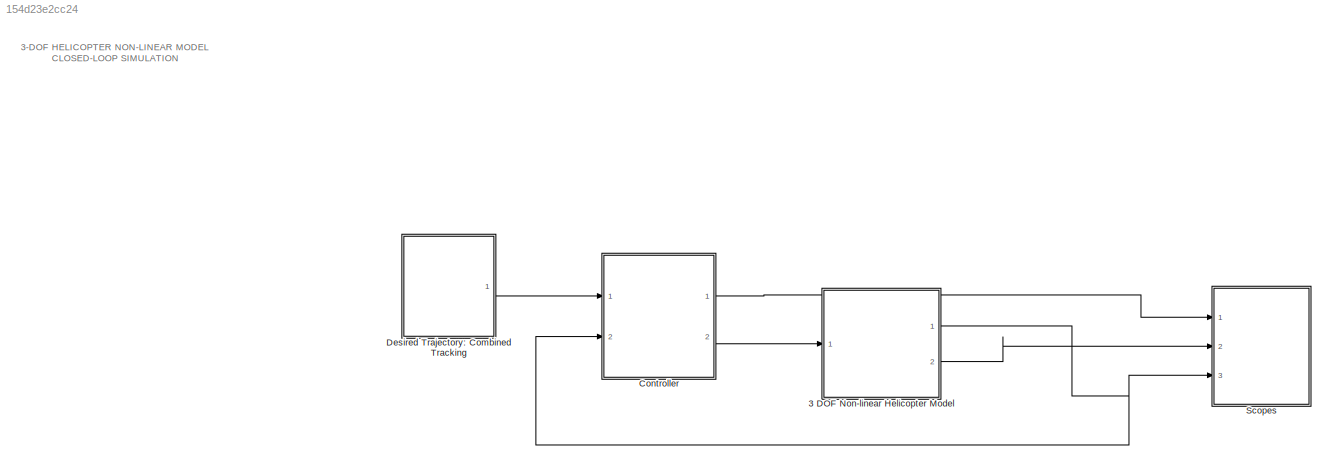
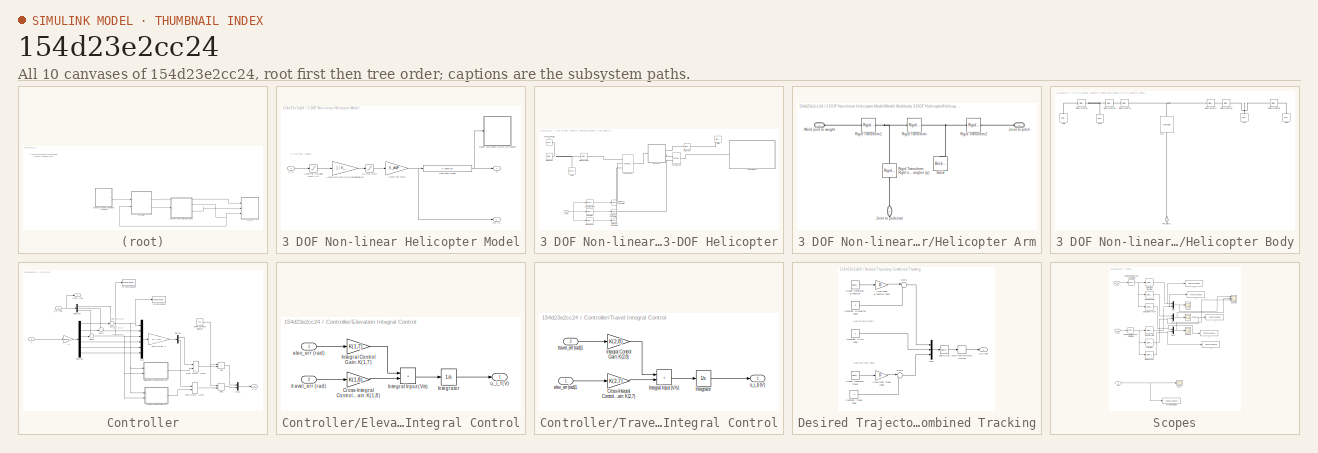
[diagram: thumbnail index - all 10 canvases of the model, root first then tree order]
MODEL slx_154d23e2cc24
KIND model
CONFIG AbsTol = auto
CONFIG EnableMultiTasking = on
CONFIG FixedStep = 0.005
CONFIG MaxStep = 1e-3
CONFIG MinStep = 1e-5
CONFIG RelTol = 1e-5
CONFIG SampleTimeConstraint = Unconstrained
CONFIG SolverName = ode1
CONFIG StartTime = 0.0
CONFIG StopTime = 50
BLOCK [SubSystem] 3 DOF Non-linear Helicopter Model
  Ports = [1, 2]
  RequestExecContextInheritance = off
BLOCK [S-Function] 3 DOF Non-linear Helicopter Model/ Nonlinear Model
  EnableBusSupport = off
  FunctionName = Nonlinear_Helicopter_SFunc
  Parameters = par,X0
  Ports = [1, 1]
  SFcnIsStateOwnerBlock = off
  SFunctionDeploymentMode = off
BLOCK [Saturate] 3 DOF Non-linear Helicopter Model/Amplifer Voltage Limit (V)
  LowerLimit = -VMAX_AMP
  UpperLimit = VMAX_AMP
BLOCK [Gain] 3 DOF Non-linear Helicopter Model/Amplifier Gain
  Gain = K_AMP
  Multiplication = Matrix(K*u)
  OutDataTypeStr = Inherit: Same as input
  ParamDataTypeStr = Inherit: Same as input
  SaturateOnIntegerOverflow = on
BLOCK [Gain] 3 DOF Non-linear Helicopter Model/Amplifier Gain Pre-Compensation
  Gain = 1 / K_AMP
  Multiplication = Matrix(K*u)
  OutDataTypeStr = Inherit: Same as input
  ParamDataTypeStr = Inherit: Same as input
  SaturateOnIntegerOverflow = on
BLOCK [Saturate] 3 DOF Non-linear Helicopter Model/DACB Limit
  LowerLimit = -VMAX_DAC
  UpperLimit = VMAX_DAC
BLOCK [SubSystem] 3 DOF Non-linear Helicopter Model/Model Multibody 3-DOF Helicopter
  Ports = [1]
  RequestExecContextInheritance = off
BLOCK [SubSystem] 3 DOF Non-linear Helicopter Model/Model Multibody 3-DOF Helicopter/Helicopter Arm
  Ports = [0, 0, 0, 0, 0, 2, 1]
  RequestExecContextInheritance = off
BLOCK [PMIOPort] 3 DOF Non-linear Helicopter Model/Model Multibody 3-DOF Helicopter/Helicopter Arm/Joint to pedestal
  NameLocation = left
  Port = 2
  Side = Right
BLOCK [PMIOPort] 3 DOF Non-linear Helicopter Model/Model Multibody 3-DOF Helicopter/Helicopter Arm/Joint to pitch
  NameLocation = top
  Port = 3
  Side = Left
BLOCK [Reference] 3 DOF Non-linear Helicopter Model/Model Multibody 3-DOF Helicopter/Helicopter Arm/Rigid Transform  REF=sm_lib/Frames and
Transforms/Rigid
Transform
  Ports = [0, 0, 0, 0, 0, 1, 1]
  SourceBlock = sm_lib/Frames and\nTransforms/Rigid\nTransform
  SourceProductBaseCode = MS
  SourceType = Rigid\nTransform
BLOCK [Reference] 3 DOF Non-linear Helicopter Model/Model Multibody 3-DOF Helicopter/Helicopter Arm/Rigid Transform1  REF=sm_lib/Frames and
Transforms/Rigid
Transform
  Ports = [0, 0, 0, 0, 0, 1, 1]
  SourceBlock = sm_lib/Frames and\nTransforms/Rigid\nTransform
  SourceProductBaseCode = MS
  SourceType = Rigid\nTransform
BLOCK [Reference] 3 DOF Non-linear Helicopter Model/Model Multibody 3-DOF Helicopter/Helicopter Arm/Rigid Transform2  REF=sm_lib/Frames and
Transforms/Rigid
Transform
  Ports = [0, 0, 0, 0, 0, 1, 1]
  SourceBlock = sm_lib/Frames and\nTransforms/Rigid\nTransform
  SourceProductBaseCode = MS
  SourceType = Rigid\nTransform
BLOCK [Reference] 3 DOF Non-linear Helicopter Model/Model Multibody 3-DOF Helicopter/Helicopter Arm/Rigid Transform: Right elevation (x) & Travel angles (y)  REF=sm_lib/Frames and
Transforms/Rigid
Transform
  NameLocation = right
  Ports = [0, 0, 0, 0, 0, 1, 1]
  SourceBlock = sm_lib/Frames and\nTransforms/Rigid\nTransform
  SourceProductBaseCode = MS
  SourceType = Rigid\nTransform
BLOCK [Reference] 3 DOF Non-linear Helicopter Model/Model Multibody 3-DOF Helicopter/Helicopter Arm/Solid  REF=sm_lib/Body Elements/Brick Solid
  NameLocation = right
  Ports = [0, 0, 0, 0, 0, 0, 1]
  SourceBlock = sm_lib/Body Elements/Brick Solid
  SourceProductBaseCode = MS
  SourceType = Brick Solid
BLOCK [PMIOPort] 3 DOF Non-linear Helicopter Model/Model Multibody 3-DOF Helicopter/Helicopter Arm/Weld joint to weight
  NameLocation = top
  Side = Left
BLOCK [SubSystem] 3 DOF Non-linear Helicopter Model/Model Multibody 3-DOF Helicopter/Helicopter Body
  Ports = [0, 0, 0, 0, 0, 1]
  RequestExecContextInheritance = off
BLOCK [Reference] 3 DOF Non-linear Helicopter Model/Model Multibody 3-DOF Helicopter/Helicopter Body/Back  REF=sm_lib/Body Elements/Cylindrical Solid
  NameLocation = right
  Ports = [0, 0, 0, 0, 0, 0, 1]
  SourceBlock = sm_lib/Body Elements/Cylindrical Solid
  SourceProductBaseCode = MS
  SourceType = Cylindrical Solid
BLOCK [Reference] 3 DOF Non-linear Helicopter Model/Model Multibody 3-DOF Helicopter/Helicopter Body/Front  REF=sm_lib/Body Elements/Cylindrical Solid
  NameLocation = right
  Ports = [0, 0, 0, 0, 0, 0, 1]
  SourceBlock = sm_lib/Body Elements/Cylindrical Solid
  SourceProductBaseCode = MS
  SourceType = Cylindrical Solid
BLOCK [PMIOPort] 3 DOF Non-linear Helicopter Model/Model Multibody 3-DOF Helicopter/Helicopter Body/Rho (pitch)1
  NameLocation = right
  Side = Left
BLOCK [Reference] 3 DOF Non-linear Helicopter Model/Model Multibody 3-DOF Helicopter/Helicopter Body/Rigid Transform  REF=sm_lib/Frames and
Transforms/Rigid
Transform
  Ports = [0, 0, 0, 0, 0, 1, 1]
  SourceBlock = sm_lib/Frames and\nTransforms/Rigid\nTransform
  SourceProductBaseCode = MS
  SourceType = Rigid\nTransform
BLOCK [Reference] 3 DOF Non-linear Helicopter Model/Model Multibody 3-DOF Helicopter/Helicopter Body/Rigid Transform1  REF=sm_lib/Frames and
Transforms/Rigid
Transform
  Ports = [0, 0, 0, 0, 0, 1, 1]
  SourceBlock = sm_lib/Frames and\nTransforms/Rigid\nTransform
  SourceProductBaseCode = MS
  SourceType = Rigid\nTransform
BLOCK [Reference] 3 DOF Non-linear Helicopter Model/Model Multibody 3-DOF Helicopter/Helicopter Body/Rigid Transform2  REF=sm_lib/Frames and
Transforms/Rigid
Transform
  Ports = [0, 0, 0, 0, 0, 1, 1]
  SourceBlock = sm_lib/Frames and\nTransforms/Rigid\nTransform
  SourceProductBaseCode = MS
  SourceType = Rigid\nTransform
BLOCK [Reference] 3 DOF Non-linear Helicopter Model/Model Multibody 3-DOF Helicopter/Helicopter Body/Rigid Transform3  REF=sm_lib/Frames and
Transforms/Rigid
Transform
  Ports = [0, 0, 0, 0, 0, 1, 1]
  SourceBlock = sm_lib/Frames and\nTransforms/Rigid\nTransform
  SourceProductBaseCode = MS
  SourceType = Rigid\nTransform
BLOCK [Reference] 3 DOF Non-linear Helicopter Model/Model Multibody 3-DOF Helicopter/Helicopter Body/Rigid Transform4  REF=sm_lib/Frames and
Transforms/Rigid
Transform
  Ports = [0, 0, 0, 0, 0, 1, 1]
  SourceBlock = sm_lib/Frames and\nTransforms/Rigid\nTransform
  SourceProductBaseCode = MS
  SourceType = Rigid\nTransform
BLOCK [Reference] 3 DOF Non-linear Helicopter Model/Model Multibody 3-DOF Helicopter/Helicopter Body/Rigid Transform5  REF=sm_lib/Frames and
Transforms/Rigid
Transform
  Ports = [0, 0, 0, 0, 0, 1, 1]
  SourceBlock = sm_lib/Frames and\nTransforms/Rigid\nTransform
  SourceProductBaseCode = MS
  SourceType = Rigid\nTransform
BLOCK [Reference] 3 DOF Non-linear Helicopter Model/Model Multibody 3-DOF Helicopter/Helicopter Body/Solid  REF=sm_lib/Body Elements/Cylindrical Solid
  NameLocation = right
  Ports = [0, 0, 0, 0, 0, 0, 1]
  SourceBlock = sm_lib/Body Elements/Cylindrical Solid
  SourceProductBaseCode = MS
  SourceType = Cylindrical Solid
BLOCK [Reference] 3 DOF Non-linear Helicopter Model/Model Multibody 3-DOF Helicopter/Helicopter Body/Solid1  REF=sm_lib/Body Elements/Cylindrical Solid
  NameLocation = right
  Ports = [0, 0, 0, 0, 0, 0, 1]
  SourceBlock = sm_lib/Body Elements/Cylindrical Solid
  SourceProductBaseCode = MS
  SourceType = Cylindrical Solid
BLOCK [Reference] 3 DOF Non-linear Helicopter Model/Model Multibody 3-DOF Helicopter/Helicopter Body/arm  REF=sm_lib/Body Elements/Brick Solid
  NameLocation = right
  Ports = [0, 0, 0, 0, 0, 1, 1]
  SourceBlock = sm_lib/Body Elements/Brick Solid
  SourceProductBaseCode = MS
  SourceType = Brick Solid
BLOCK [Reference] 3 DOF Non-linear Helicopter Model/Model Multibody 3-DOF Helicopter/Revolute Joint  REF=sm_lib/Joints/Revolute Joint
  Ports = [0, 0, 0, 0, 0, 2, 1]
  SourceBlock = sm_lib/Joints/Revolute Joint
  SourceProductBaseCode = MS
  SourceType = Revolute Joint
BLOCK [Reference] 3 DOF Non-linear Helicopter Model/Model Multibody 3-DOF Helicopter/Rigid-Transform  REF=sm_lib/Frames and
Transforms/Rigid
Transform
  Ports = [0, 0, 0, 0, 0, 1, 1]
  SourceBlock = sm_lib/Frames and\nTransforms/Rigid\nTransform
  SourceProductBaseCode = MS
  SourceType = Rigid\nTransform
BLOCK [Selector] 3 DOF Non-linear Helicopter Model/Model Multibody 3-DOF Helicopter/Select Elevation
  IndexOptions = Index vector (dialog)
  Indices = 1
  InputPortWidth = 6
  OutputSizes = 1
  Ports = [1, 1]
BLOCK [Selector] 3 DOF Non-linear Helicopter Model/Model Multibody 3-DOF Helicopter/Select Pitch
  IndexOptions = Index vector (dialog)
  Indices = 2
  InputPortWidth = 6
  OutputSizes = 1
  Ports = [1, 1]
BLOCK [Selector] 3 DOF Non-linear Helicopter Model/Model Multibody 3-DOF Helicopter/Select Travel
  IndexOptions = Index vector (dialog)
  Indices = 3
  InputPortWidth = 6
  OutputSizes = 1
  Ports = [1, 1]
BLOCK [Reference] 3 DOF Non-linear Helicopter Model/Model Multibody 3-DOF Helicopter/Simulink-PS Converter2  REF=nesl_utility/Simulink-PS
Converter
  Ports = [1, 0, 0, 0, 0, 0, 1]
  SourceBlock = nesl_utility/Simulink-PS\nConverter
  SourceProductBaseCode = SS
  SourceType = Simulink-PS\nConverter
BLOCK [Reference] 3 DOF Non-linear Helicopter Model/Model Multibody 3-DOF Helicopter/Simulink-PS Converter3  REF=nesl_utility/Simulink-PS
Converter
  Ports = [1, 0, 0, 0, 0, 0, 1]
  SourceBlock = nesl_utility/Simulink-PS\nConverter
  SourceProductBaseCode = SS
  SourceType = Simulink-PS\nConverter
BLOCK [Reference] 3 DOF Non-linear Helicopter Model/Model Multibody 3-DOF Helicopter/Simulink-PS Converter4  REF=nesl_utility/Simulink-PS
Converter
  Ports = [1, 0, 0, 0, 0, 0, 1]
  SourceBlock = nesl_utility/Simulink-PS\nConverter
  SourceProductBaseCode = SS
  SourceType = Simulink-PS\nConverter
BLOCK [Reference] 3 DOF Non-linear Helicopter Model/Model Multibody 3-DOF Helicopter/Solid  REF=sm_lib/Body Elements/Brick Solid
  NameLocation = right
  Ports = [0, 0, 0, 0, 0, 0, 1]
  SourceBlock = sm_lib/Body Elements/Brick Solid
  SourceProductBaseCode = MS
  SourceType = Brick Solid
BLOCK [Reference] 3 DOF Non-linear Helicopter Model/Model Multibody 3-DOF Helicopter/Solid1  REF=sm_lib/Body Elements/Revolved Solid
  NameLocation = right
  Ports = [0, 0, 0, 0, 0, 0, 1]
  SourceBlock = sm_lib/Body Elements/Revolved Solid
  SourceProductBaseCode = MS
  SourceType = Revolved Solid
BLOCK [Reference] 3 DOF Non-linear Helicopter Model/Model Multibody 3-DOF Helicopter/Solver Configuration  REF=nesl_utility/Solver
Configuration
  Ports = [0, 0, 0, 0, 0, 0, 1]
  SourceBlock = nesl_utility/Solver\nConfiguration
  SourceProductBaseCode = SS
  SourceType = Solver\nConfiguration
BLOCK [Reference] 3 DOF Non-linear Helicopter Model/Model Multibody 3-DOF Helicopter/Universal Joint  REF=sm_lib/Joints/Universal
Joint
  Ports = [0, 0, 0, 0, 0, 3, 1]
  SourceBlock = sm_lib/Joints/Universal\nJoint
  SourceProductBaseCode = MS
  SourceType = Universal\nJoint
BLOCK [Reference] 3 DOF Non-linear Helicopter Model/Model Multibody 3-DOF Helicopter/Weld Joint  REF=sm_lib/Joints/Weld Joint
  Ports = [0, 0, 0, 0, 0, 1, 1]
  SourceBlock = sm_lib/Joints/Weld Joint
  SourceProductBaseCode = MS
  SourceType = Weld Joint
BLOCK [Reference] 3 DOF Non-linear Helicopter Model/Model Multibody 3-DOF Helicopter/World Frame  REF=sm_lib/Frames and
Transforms/World Frame
  Ports = [0, 0, 0, 0, 0, 0, 1]
  SourceBlock = sm_lib/Frames and\nTransforms/World Frame
  SourceProductBaseCode = MS
  SourceType = World Frame
BLOCK [Inport] 3 DOF Non-linear Helicopter Model/Model Multibody 3-DOF Helicopter/X_sim
BLOCK [Outport] 3 DOF Non-linear Helicopter Model/Vm (V)
  Port = 2
  VectorParamsAs1DForOutWhenUnconnected = off
BLOCK [Outport] 3 DOF Non-linear Helicopter Model/X 
  VectorParamsAs1DForOutWhenUnconnected = off
BLOCK [Inport] 3 DOF Non-linear Helicopter Model/u (V)
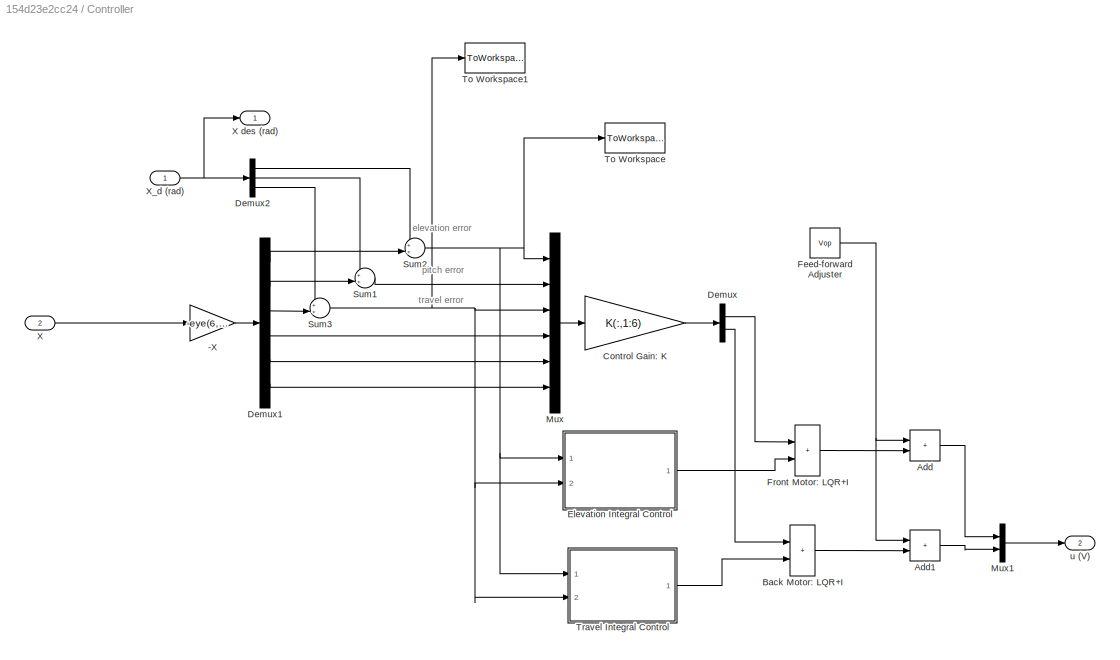
BLOCK [SubSystem] Controller
  Ports = [2, 2]
  RequestExecContextInheritance = off
BLOCK [Gain] Controller/-X
  Gain = -eye(6,6)
  Multiplication = Matrix(K*u)
BLOCK [Sum] Controller/Add
  IconShape = rectangular
  Ports = [2, 1]
BLOCK [Sum] Controller/Add1
  IconShape = rectangular
  Ports = [2, 1]
BLOCK [Sum] Controller/Back Motor: LQR+I
  IconShape = rectangular
  Ports = [2, 1]
BLOCK [Gain] Controller/Control Gain: K
  Gain = K(:,1:6)
  Multiplication = Matrix(K*u)
BLOCK [Demux] Controller/Demux
  Outputs = 2
  Ports = [1, 2]
BLOCK [Demux] Controller/Demux1
  Outputs = 6
  Ports = [1, 6]
BLOCK [Demux] Controller/Demux2
  Outputs = 3
  Ports = [1, 3]
BLOCK [SubSystem] Controller/Elevation Integral Control
  Ports = [2, 1]
  RequestExecContextInheritance = off
BLOCK [Gain] Controller/Elevation Integral Control/Cross-Integral Control Gain: K(1,8)
  Gain = K(1,8)
  Multiplication = Matrix(K*u)
BLOCK [Gain] Controller/Elevation Integral Control/Integral Control Gain: K(1,7)
  Gain = K(1,7)
  Multiplication = Matrix(K*u)
BLOCK [Sum] Controller/Elevation Integral Control/Integral Input (V//s)
  IconShape = rectangular
  Ports = [2, 1]
BLOCK [Integrator] Controller/Elevation Integral Control/Integrator
  LimitOutput = on
  LowerSaturationLimit = -SAT_INT_ERR_ELEV
  Ports = [1, 1]
  UpperSaturationLimit = SAT_INT_ERR_ELEV
BLOCK [Inport] Controller/Elevation Integral Control/elev_err (rad)
BLOCK [Inport] Controller/Elevation Integral Control/travel_err (rad)
  Port = 2
BLOCK [Outport] Controller/Elevation Integral Control/u_i_f (V)
  VectorParamsAs1DForOutWhenUnconnected = off
BLOCK [Constant] Controller/Feed-forward Adjuster
  Value = Vop
BLOCK [Sum] Controller/Front Motor: LQR+I
  IconShape = rectangular
  Ports = [2, 1]
BLOCK [Mux] Controller/Mux
  DisplayOption = bar
  Inputs = 6
  Ports = [6, 1]
BLOCK [Mux] Controller/Mux1
  DisplayOption = bar
  Inputs = 2
  Ports = [2, 1]
BLOCK [Sum] Controller/Sum1
  Inputs = ++|
  Ports = [2, 1]
BLOCK [Sum] Controller/Sum2
  Inputs = ++|
  Ports = [2, 1]
BLOCK [Sum] Controller/Sum3
  Inputs = ++|
  Ports = [2, 1]
BLOCK [ToWorkspace] Controller/To Workspace
  FixptAsFi = on
  MaxDataPoints = inf
  Ports = [1]
  SampleTime = -1
  VariableName = err_elevation
BLOCK [ToWorkspace] Controller/To Workspace1
  FixptAsFi = on
  MaxDataPoints = inf
  Ports = [1]
  SampleTime = -1
  VariableName = err_travel
BLOCK [SubSystem] Controller/Travel Integral Control
  Ports = [2, 1]
  RequestExecContextInheritance = off
BLOCK [Gain] Controller/Travel Integral Control/Cross-Integral Control Gain: K(2,7)
  Gain = K(2,7)
  Multiplication = Matrix(K*u)
BLOCK [Gain] Controller/Travel Integral Control/Integral Control Gain: K(2,8)
  Gain = K(2,8)
  Multiplication = Matrix(K*u)
BLOCK [Sum] Controller/Travel Integral Control/Integral Input (V//s)
  IconShape = rectangular
  Ports = [2, 1]
BLOCK [Integrator] Controller/Travel Integral Control/Integrator
  LimitOutput = on
  LowerSaturationLimit = -SAT_INT_ERR_TRAVEL
  Ports = [1, 1]
  UpperSaturationLimit = SAT_INT_ERR_TRAVEL
BLOCK [Inport] Controller/Travel Integral Control/elev_err (rad)1
BLOCK [Inport] Controller/Travel Integral Control/travel_err (rad)1
  Port = 2
BLOCK [Outport] Controller/Travel Integral Control/u_i_b (V)
  VectorParamsAs1DForOutWhenUnconnected = off
BLOCK [Inport] Controller/X
  Port = 2
BLOCK [Outport] Controller/X des (rad)
  VectorParamsAs1DForOutWhenUnconnected = off
BLOCK [Inport] Controller/X_d (rad)
BLOCK [Outport] Controller/u (V)
  Port = 2
  VectorParamsAs1DForOutWhenUnconnected = off
BLOCK [SubSystem] Desired Trajectory: Combined Tracking
  Ports = [0, 1]
  RequestExecContextInheritance = off
BLOCK [Gain] Desired Trajectory: Combined Tracking/Amplitude: Elevation (deg)
  Gain = 10
BLOCK [Gain] Desired Trajectory: Combined Tracking/Amplitude: Travel (deg)
  Gain = 10
BLOCK [Constant] Desired Trajectory: Combined Tracking/Constant: Elevation (deg)
  Value = 0
BLOCK [Constant] Desired Trajectory: Combined Tracking/Constant: Pitch (deg)
  Value = 0
BLOCK [Constant] Desired Trajectory: Combined Tracking/Constant: Travel (deg)
  Value = 0
BLOCK [RateLimiter] Desired Trajectory: Combined Tracking/Des Position Rate Limiter
  FallingSlewLimit = -CMD_RATE_LIMIT
  RisingSlewLimit = CMD_RATE_LIMIT
  SampleTimeMode = inherited
BLOCK [Mux] Desired Trajectory: Combined Tracking/Mux
  DisplayOption = bar
  Inputs = 3
  Ports = [3, 1]
BLOCK [SignalGenerator] Desired Trajectory: Combined Tracking/Signal Generator: Elevation
  Frequency = 0.1
  Ports = [0, 1]
  WaveForm = square
BLOCK [SignalGenerator] Desired Trajectory: Combined Tracking/Signal Generator: Travel
  Frequency = 0.05
  Ports = [0, 1]
  WaveForm = square
BLOCK [Sum] Desired Trajectory: Combined Tracking/Sum1
  Inputs = |++
  Ports = [2, 1]
BLOCK [Sum] Desired Trajectory: Combined Tracking/Sum2
  Inputs = |++
  Ports = [2, 1]
BLOCK [Reference] Desired Trajectory: Combined Tracking/deg to rad  REF=simulink_extras/Transformations/Degrees to
Radians
  Ports = [1, 1]
  SourceBlock = simulink_extras/Transformations/Degrees to\nRadians
  SourceProductBaseCode = SL
  SourceType = DegreesToRadians
BLOCK [Outport] Desired Trajectory: Combined Tracking/x_d (rad)
  VectorParamsAs1DForOutWhenUnconnected = off
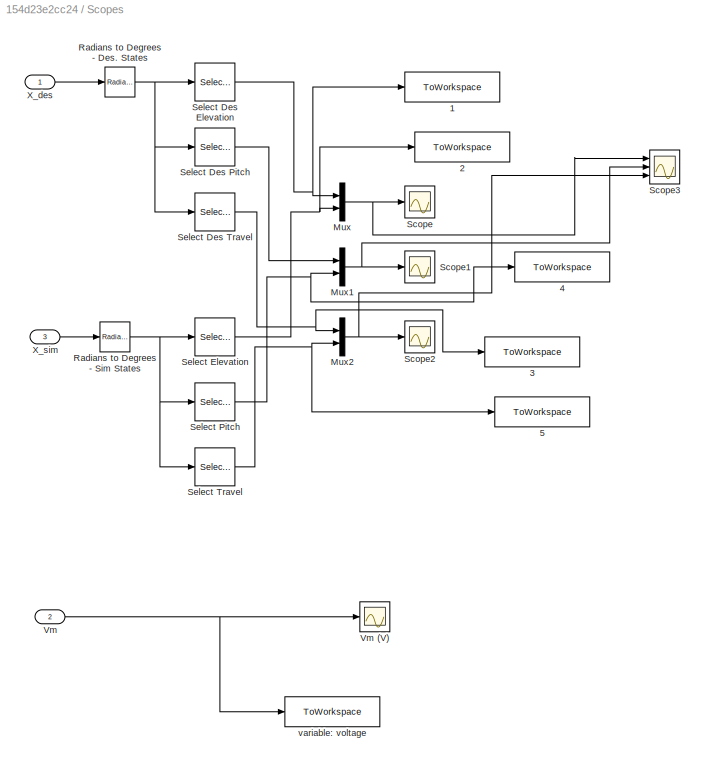
BLOCK [SubSystem] Scopes
  Ports = [3]
  RequestExecContextInheritance = off
BLOCK [ToWorkspace] Scopes/ 1
  FixptAsFi = on
  MaxDataPoints = inf
  Ports = [1]
  SampleTime = -1
  VariableName = elevation_ref
BLOCK [ToWorkspace] Scopes/ 2
  FixptAsFi = on
  MaxDataPoints = inf
  Ports = [1]
  SampleTime = -1
  VariableName = elevation
BLOCK [ToWorkspace] Scopes/ 3
  FixptAsFi = on
  MaxDataPoints = inf
  Ports = [1]
  SampleTime = -1
  VariableName = travel_ref
BLOCK [ToWorkspace] Scopes/ 4
  FixptAsFi = on
  MaxDataPoints = inf
  Ports = [1]
  SampleTime = -1
  VariableName = pitch
BLOCK [ToWorkspace] Scopes/ 5
  FixptAsFi = on
  MaxDataPoints = inf
  Ports = [1]
  SampleTime = -1
  VariableName = travel
BLOCK [Mux] Scopes/Mux
  DisplayOption = bar
  Inputs = 2
  Ports = [2, 1]
BLOCK [Mux] Scopes/Mux1
  DisplayOption = bar
  Inputs = 2
  Ports = [2, 1]
BLOCK [Mux] Scopes/Mux2
  DisplayOption = bar
  Inputs = 2
  Ports = [2, 1]
BLOCK [Reference] Scopes/Radians to Degrees - Des. States  REF=simulink_extras/Transformations/Radians
to Degrees
  Ports = [1, 1]
  SourceBlock = simulink_extras/Transformations/Radians\nto Degrees
  SourceProductBaseCode = SL
  SourceType = RadiansToDegrees
BLOCK [Reference] Scopes/Radians to Degrees - Sim States  REF=simulink_extras/Transformations/Radians
to Degrees
  Ports = [1, 1]
  SourceBlock = simulink_extras/Transformations/Radians\nto Degrees
  SourceProductBaseCode = SL
  SourceType = RadiansToDegrees
BLOCK [Scope] Scopes/Scope
  Floating = off
  NumInputPorts = 1
  Ports = [1]
  ScopeSpecificationString = Simulink.scopes.TimeScopeBlockCfg('CurrentConfiguration', extmgr.ConfigurationSet(extmgr.Configuration('Core','General UI',true),extmgr.Configuration('Core','Source UI',true),extmgr.Configuration('Sources','WiredSimulink',true,'DataLoggingVariableName','ScopeData1','DataLoggingLimitDataPoints',true,'DataLoggingSaveFormat','Array','DataLoggingDecimation','1','DataLoggingDecimateData',true),extmgr.C...<+1552ch>
BLOCK [Scope] Scopes/Scope1
  Floating = off
  NumInputPorts = 1
  Ports = [1]
  ScopeSpecificationString = Simulink.scopes.TimeScopeBlockCfg('CurrentConfiguration', extmgr.ConfigurationSet(extmgr.Configuration('Core','General UI',true),extmgr.Configuration('Core','Source UI',true),extmgr.Configuration('Sources','WiredSimulink',true,'DataLoggingVariableName','ScopeData2','DataLoggingLimitDataPoints',true,'DataLoggingSaveFormat','Array','DataLoggingDecimation','1','DataLoggingDecimateData',true),extmgr.C...<+1550ch>
BLOCK [Scope] Scopes/Scope2
  Floating = off
  NumInputPorts = 1
  Ports = [1]
  ScopeSpecificationString = Simulink.scopes.TimeScopeBlockCfg('CurrentConfiguration', extmgr.ConfigurationSet(extmgr.Configuration('Core','General UI',true),extmgr.Configuration('Core','Source UI',true),extmgr.Configuration('Sources','WiredSimulink',true,'DataLoggingVariableName','ScopeData3','DataLoggingLimitDataPoints',true,'DataLoggingSaveFormat','Array','DataLoggingDecimation','1','DataLoggingDecimateData',true),extmgr.C...<+1553ch>
BLOCK [Scope] Scopes/Scope3
  Floating = off
  NumInputPorts = 3
  Ports = [3]
  ScopeSpecificationString = Simulink.scopes.TimeScopeBlockCfg('CurrentConfiguration', extmgr.ConfigurationSet(extmgr.Configuration('Core','General UI',true),extmgr.Configuration('Core','Source UI',true),extmgr.Configuration('Sources','WiredSimulink',true,'DataLoggingVariableName','ScopeData1'),extmgr.Configuration('Visuals','Time Domain',true,'SerializedDisplays',{struct('MinYLimReal','-18.5252','MaxYLimReal','16.72683','YLa...<+2860ch>
BLOCK [Selector] Scopes/Select Des Elevation
  IndexOptions = Index vector (dialog)
  Indices = 1
  InputPortWidth = 3
  OutputSizes = 1
  Ports = [1, 1]
BLOCK [Selector] Scopes/Select Des Pitch
  IndexOptions = Index vector (dialog)
  Indices = 2
  InputPortWidth = 3
  OutputSizes = 1
  Ports = [1, 1]
BLOCK [Selector] Scopes/Select Des Travel
  IndexOptions = Index vector (dialog)
  Indices = 3
  InputPortWidth = 3
  OutputSizes = 1
  Ports = [1, 1]
BLOCK [Selector] Scopes/Select Elevation
  IndexOptions = Index vector (dialog)
  Indices = 1
  InputPortWidth = 6
  OutputSizes = 1
  Ports = [1, 1]
BLOCK [Selector] Scopes/Select Pitch
  IndexOptions = Index vector (dialog)
  Indices = 2
  InputPortWidth = 6
  OutputSizes = 1
  Ports = [1, 1]
BLOCK [Selector] Scopes/Select Travel
  IndexOptions = Index vector (dialog)
  Indices = 3
  InputPortWidth = 6
  OutputSizes = 1
  Ports = [1, 1]
BLOCK [Inport] Scopes/Vm
  Port = 2
BLOCK [Scope] Scopes/Vm (V)
  Floating = off
  NumInputPorts = 1
  Ports = [1]
  ScopeSpecificationString = Simulink.scopes.TimeScopeBlockCfg('CurrentConfiguration', extmgr.ConfigurationSet(extmgr.Configuration('Core','General UI',true),extmgr.Configuration('Core','Source UI',true),extmgr.Configuration('Sources','WiredSimulink',true,'DataLoggingDecimation','1','DataLoggingDecimateData',true,'DataLoggingSaveFormat','Array','DataLoggingVariableName','ScopeData2'),extmgr.Configuration('Visuals','Time Domai...<+1691ch>
BLOCK [Inport] Scopes/X_des
BLOCK [Inport] Scopes/X_sim
  Port = 3
BLOCK [ToWorkspace] Scopes/variable: voltage 
  FixptAsFi = on
  MaxDataPoints = inf
  Ports = [1]
  SampleTime = -1
  VariableName = voltage_simu
ANNOTATION (root): 3-DOF HELICOPTER NON-LINEAR MODEL CLOSED-LOOP SIMULATION
ANNOTATION 3 DOF Non-linear Helicopter Model: u = [u_front, u_back]
ANNOTATION Controller: elevation error
ANNOTATION Controller: pitch error
ANNOTATION Controller: travel error
ANNOTATION Desired Trajectory: Combined Tracking: Desired pitch angle
ANNOTATION Desired Trajectory: Combined Tracking: Desired travel angle
NET 3 DOF Non-linear Helicopter Model/ Nonlinear Model:1 -> 3 DOF Non-linear Helicopter Model/Model Multibody 3-DOF Helicopter:1, 3 DOF Non-linear Helicopter Model/X :1
LINE 3 DOF Non-linear Helicopter Model/Amplifer Voltage Limit (V):1 -> 3 DOF Non-linear Helicopter Model/Amplifier Gain Pre-Compensation:1
LINE 3 DOF Non-linear Helicopter Model/Amplifier Gain Pre-Compensation:1 -> 3 DOF Non-linear Helicopter Model/DACB Limit:1
NET 3 DOF Non-linear Helicopter Model/Amplifier Gain:1 -> 3 DOF Non-linear Helicopter Model/ Nonlinear Model:1, 3 DOF Non-linear Helicopter Model/Vm (V):1
LINE 3 DOF Non-linear Helicopter Model/DACB Limit:1 -> 3 DOF Non-linear Helicopter Model/Amplifier Gain:1
LINE 3 DOF Non-linear Helicopter Model/Model Multibody 3-DOF Helicopter/Select Elevation:1 -> 3 DOF Non-linear Helicopter Model/Model Multibody 3-DOF Helicopter/Simulink-PS Converter2:1
LINE 3 DOF Non-linear Helicopter Model/Model Multibody 3-DOF Helicopter/Select Pitch:1 -> 3 DOF Non-linear Helicopter Model/Model Multibody 3-DOF Helicopter/Simulink-PS Converter4:1
LINE 3 DOF Non-linear Helicopter Model/Model Multibody 3-DOF Helicopter/Select Travel:1 -> 3 DOF Non-linear Helicopter Model/Model Multibody 3-DOF Helicopter/Simulink-PS Converter3:1
NET 3 DOF Non-linear Helicopter Model/Model Multibody 3-DOF Helicopter/X_sim:1 -> 3 DOF Non-linear Helicopter Model/Model Multibody 3-DOF Helicopter/Select Elevation:1, 3 DOF Non-linear Helicopter Model/Model Multibody 3-DOF Helicopter/Select Pitch:1, 3 DOF Non-linear Helicopter Model/Model Multibody 3-DOF Helicopter/Select Travel:1
LINE 3 DOF Non-linear Helicopter Model/u (V):1 -> 3 DOF Non-linear Helicopter Model/Amplifer Voltage Limit (V):1
NET 3 DOF Non-linear Helicopter Model:1 -> Controller:2, Scopes:3
LINE 3 DOF Non-linear Helicopter Model:2 -> Scopes:2
LINE Controller/-X:1 -> Controller/Demux1:1
LINE Controller/Add1:1 -> Controller/Mux1:2
LINE Controller/Add:1 -> Controller/Mux1:1
LINE Controller/Back Motor: LQR+I:1 -> Controller/Add1:2
LINE Controller/Control Gain: K:1 -> Controller/Demux:1
LINE Controller/Demux1:1 -> Controller/Sum2:2
LINE Controller/Demux1:2 -> Controller/Sum1:2
LINE Controller/Demux1:3 -> Controller/Sum3:2
LINE Controller/Demux1:4 -> Controller/Mux:4
LINE Controller/Demux1:5 -> Controller/Mux:5
LINE Controller/Demux1:6 -> Controller/Mux:6
LINE Controller/Demux2:1 -> Controller/Sum2:1
LINE Controller/Demux2:2 -> Controller/Sum1:1
LINE Controller/Demux2:3 -> Controller/Sum3:1
LINE Controller/Demux:1 -> Controller/Front Motor: LQR+I:1
LINE Controller/Demux:2 -> Controller/Back Motor: LQR+I:1
LINE Controller/Elevation Integral Control/Cross-Integral Control Gain: K(1,8):1 -> Controller/Elevation Integral Control/Integral Input (V//s):2
LINE Controller/Elevation Integral Control/Integral Control Gain: K(1,7):1 -> Controller/Elevation Integral Control/Integral Input (V//s):1
LINE Controller/Elevation Integral Control/Integral Input (V//s):1 -> Controller/Elevation Integral Control/Integrator:1
LINE Controller/Elevation Integral Control/Integrator:1 -> Controller/Elevation Integral Control/u_i_f (V):1
LINE Controller/Elevation Integral Control/elev_err (rad):1 -> Controller/Elevation Integral Control/Integral Control Gain: K(1,7):1
LINE Controller/Elevation Integral Control/travel_err (rad):1 -> Controller/Elevation Integral Control/Cross-Integral Control Gain: K(1,8):1
LINE Controller/Elevation Integral Control:1 -> Controller/Front Motor: LQR+I:2
NET Controller/Feed-forward Adjuster:1 -> Controller/Add1:1, Controller/Add:1
LINE Controller/Front Motor: LQR+I:1 -> Controller/Add:2
LINE Controller/Mux1:1 -> Controller/u (V):1
LINE Controller/Mux:1 -> Controller/Control Gain: K:1
LINE Controller/Sum1:1 -> Controller/Mux:2
NET Controller/Sum2:1 -> Controller/Elevation Integral Control:1, Controller/Mux:1, Controller/To Workspace:1, Controller/Travel Integral Control:1
NET Controller/Sum3:1 -> Controller/Elevation Integral Control:2, Controller/Mux:3, Controller/To Workspace1:1, Controller/Travel Integral Control:2
LINE Controller/Travel Integral Control/Cross-Integral Control Gain: K(2,7):1 -> Controller/Travel Integral Control/Integral Input (V//s):2
LINE Controller/Travel Integral Control/Integral Control Gain: K(2,8):1 -> Controller/Travel Integral Control/Integral Input (V//s):1
LINE Controller/Travel Integral Control/Integral Input (V//s):1 -> Controller/Travel Integral Control/Integrator:1
LINE Controller/Travel Integral Control/Integrator:1 -> Controller/Travel Integral Control/u_i_b (V):1
LINE Controller/Travel Integral Control/elev_err (rad)1:1 -> Controller/Travel Integral Control/Cross-Integral Control Gain: K(2,7):1
LINE Controller/Travel Integral Control/travel_err (rad)1:1 -> Controller/Travel Integral Control/Integral Control Gain: K(2,8):1
LINE Controller/Travel Integral Control:1 -> Controller/Back Motor: LQR+I:2
LINE Controller/X:1 -> Controller/-X:1
NET Controller/X_d (rad):1 -> Controller/Demux2:1, Controller/X des (rad):1
LINE Controller:1 -> Scopes:1
LINE Controller:2 -> 3 DOF Non-linear Helicopter Model:1
LINE Desired Trajectory: Combined Tracking/Amplitude: Elevation (deg):1 -> Desired Trajectory: Combined Tracking/Sum1:1
LINE Desired Trajectory: Combined Tracking/Amplitude: Travel (deg):1 -> Desired Trajectory: Combined Tracking/Sum2:1
LINE Desired Trajectory: Combined Tracking/Constant: Elevation (deg):1 -> Desired Trajectory: Combined Tracking/Sum1:2
LINE Desired Trajectory: Combined Tracking/Constant: Pitch (deg):1 -> Desired Trajectory: Combined Tracking/Mux:2
LINE Desired Trajectory: Combined Tracking/Constant: Travel (deg):1 -> Desired Trajectory: Combined Tracking/Sum2:2
LINE Desired Trajectory: Combined Tracking/Des Position Rate Limiter:1 -> Desired Trajectory: Combined Tracking/x_d (rad):1
LINE Desired Trajectory: Combined Tracking/Mux:1 -> Desired Trajectory: Combined Tracking/deg to rad:1
LINE Desired Trajectory: Combined Tracking/Signal Generator: Elevation:1 -> Desired Trajectory: Combined Tracking/Amplitude: Elevation (deg):1
LINE Desired Trajectory: Combined Tracking/Signal Generator: Travel:1 -> Desired Trajectory: Combined Tracking/Amplitude: Travel (deg):1
LINE Desired Trajectory: Combined Tracking/Sum1:1 -> Desired Trajectory: Combined Tracking/Mux:1
LINE Desired Trajectory: Combined Tracking/Sum2:1 -> Desired Trajectory: Combined Tracking/Mux:3
LINE Desired Trajectory: Combined Tracking/deg to rad:1 -> Desired Trajectory: Combined Tracking/Des Position Rate Limiter:1
LINE Desired Trajectory: Combined Tracking:1 -> Controller:1
NET Scopes/Mux1:1 -> Scopes/Scope1:1, Scopes/Scope3:2
NET Scopes/Mux2:1 -> Scopes/Scope2:1, Scopes/Scope3:3
NET Scopes/Mux:1 -> Scopes/Scope3:1, Scopes/Scope:1
NET Scopes/Radians to Degrees - Des. States:1 -> Scopes/Select Des Elevation:1, Scopes/Select Des Pitch:1, Scopes/Select Des Travel:1
NET Scopes/Radians to Degrees - Sim States:1 -> Scopes/Select Elevation:1, Scopes/Select Pitch:1, Scopes/Select Travel:1
NET Scopes/Select Des Elevation:1 -> Scopes/ 1:1, Scopes/Mux:1
LINE Scopes/Select Des Pitch:1 -> Scopes/Mux1:1
NET Scopes/Select Des Travel:1 -> Scopes/ 3:1, Scopes/Mux2:1
NET Scopes/Select Elevation:1 -> Scopes/ 2:1, Scopes/Mux:2
NET Scopes/Select Pitch:1 -> Scopes/ 4:1, Scopes/Mux1:2
NET Scopes/Select Travel:1 -> Scopes/ 5:1, Scopes/Mux2:2
NET Scopes/Vm:1 -> Scopes/Vm (V):1, Scopes/variable: voltage :1
LINE Scopes/X_des:1 -> Scopes/Radians to Degrees - Des. States:1
LINE Scopes/X_sim:1 -> Scopes/Radians to Degrees - Sim States:1
PLINE 3 DOF Non-linear Helicopter Model/Model Multibody 3-DOF Helicopter/Helicopter Arm/Joint to pedestal:RConn1 -- 3 DOF Non-linear Helicopter Model/Model Multibody 3-DOF Helicopter/Helicopter Arm/Rigid Transform: Right elevation (x) & Travel angles (y):RConn1
PLINE 3 DOF Non-linear Helicopter Model/Model Multibody 3-DOF Helicopter/Helicopter Arm/Joint to pitch:RConn1 -- 3 DOF Non-linear Helicopter Model/Model Multibody 3-DOF Helicopter/Helicopter Arm/Rigid Transform2:RConn1
PNET net1: 3 DOF Non-linear Helicopter Model/Model Multibody 3-DOF Helicopter/Helicopter Arm/Rigid Transform1:LConn1 -- 3 DOF Non-linear Helicopter Model/Model Multibody 3-DOF Helicopter/Helicopter Arm/Rigid Transform: Right elevation (x) & Travel angles (y):LConn1 -- 3 DOF Non-linear Helicopter Model/Model Multibody 3-DOF Helicopter/Helicopter Arm/Rigid Transform:RConn1
PLINE 3 DOF Non-linear Helicopter Model/Model Multibody 3-DOF Helicopter/Helicopter Arm/Rigid Transform1:RConn1 -- 3 DOF Non-linear Helicopter Model/Model Multibody 3-DOF Helicopter/Helicopter Arm/Weld joint to weight:RConn1
PNET net2: 3 DOF Non-linear Helicopter Model/Model Multibody 3-DOF Helicopter/Helicopter Arm/Rigid Transform2:LConn1 -- 3 DOF Non-linear Helicopter Model/Model Multibody 3-DOF Helicopter/Helicopter Arm/Rigid Transform:LConn1 -- 3 DOF Non-linear Helicopter Model/Model Multibody 3-DOF Helicopter/Helicopter Arm/Solid:RConn1
PLINE 3 DOF Non-linear Helicopter Model/Model Multibody 3-DOF Helicopter/Helicopter Arm:LConn1 -- 3 DOF Non-linear Helicopter Model/Model Multibody 3-DOF Helicopter/Weld Joint:LConn1
PLINE 3 DOF Non-linear Helicopter Model/Model Multibody 3-DOF Helicopter/Helicopter Arm:LConn2 -- 3 DOF Non-linear Helicopter Model/Model Multibody 3-DOF Helicopter/Revolute Joint:LConn1
PLINE 3 DOF Non-linear Helicopter Model/Model Multibody 3-DOF Helicopter/Helicopter Arm:RConn1 -- 3 DOF Non-linear Helicopter Model/Model Multibody 3-DOF Helicopter/Universal Joint:RConn1
PNET net3: 3 DOF Non-linear Helicopter Model/Model Multibody 3-DOF Helicopter/Helicopter Body/Back:RConn1 -- 3 DOF Non-linear Helicopter Model/Model Multibody 3-DOF Helicopter/Helicopter Body/Rigid Transform2:RConn1 -- 3 DOF Non-linear Helicopter Model/Model Multibody 3-DOF Helicopter/Helicopter Body/Rigid Transform4:RConn1
PNET net4: 3 DOF Non-linear Helicopter Model/Model Multibody 3-DOF Helicopter/Helicopter Body/Front:RConn1 -- 3 DOF Non-linear Helicopter Model/Model Multibody 3-DOF Helicopter/Helicopter Body/Rigid Transform3:LConn1 -- 3 DOF Non-linear Helicopter Model/Model Multibody 3-DOF Helicopter/Helicopter Body/Rigid Transform5:LConn1
PLINE 3 DOF Non-linear Helicopter Model/Model Multibody 3-DOF Helicopter/Helicopter Body/Rho (pitch)1:RConn1 -- 3 DOF Non-linear Helicopter Model/Model Multibody 3-DOF Helicopter/Helicopter Body/arm:LConn1
PNET net5: 3 DOF Non-linear Helicopter Model/Model Multibody 3-DOF Helicopter/Helicopter Body/Rigid Transform1:LConn1 -- 3 DOF Non-linear Helicopter Model/Model Multibody 3-DOF Helicopter/Helicopter Body/Rigid Transform:LConn1 -- 3 DOF Non-linear Helicopter Model/Model Multibody 3-DOF Helicopter/Helicopter Body/arm:RConn1
PLINE 3 DOF Non-linear Helicopter Model/Model Multibody 3-DOF Helicopter/Helicopter Body/Rigid Transform1:RConn1 -- 3 DOF Non-linear Helicopter Model/Model Multibody 3-DOF Helicopter/Helicopter Body/Rigid Transform2:LConn1
PLINE 3 DOF Non-linear Helicopter Model/Model Multibody 3-DOF Helicopter/Helicopter Body/Rigid Transform3:RConn1 -- 3 DOF Non-linear Helicopter Model/Model Multibody 3-DOF Helicopter/Helicopter Body/Rigid Transform:RConn1
PLINE 3 DOF Non-linear Helicopter Model/Model Multibody 3-DOF Helicopter/Helicopter Body/Rigid Transform4:LConn1 -- 3 DOF Non-linear Helicopter Model/Model Multibody 3-DOF Helicopter/Helicopter Body/Solid:RConn1
PLINE 3 DOF Non-linear Helicopter Model/Model Multibody 3-DOF Helicopter/Helicopter Body/Rigid Transform5:RConn1 -- 3 DOF Non-linear Helicopter Model/Model Multibody 3-DOF Helicopter/Helicopter Body/Solid1:RConn1
PLINE 3 DOF Non-linear Helicopter Model/Model Multibody 3-DOF Helicopter/Helicopter Body:LConn1 -- 3 DOF Non-linear Helicopter Model/Model Multibody 3-DOF Helicopter/Revolute Joint:RConn1
PLINE 3 DOF Non-linear Helicopter Model/Model Multibody 3-DOF Helicopter/Revolute Joint:LConn2 -- 3 DOF Non-linear Helicopter Model/Model Multibody 3-DOF Helicopter/Simulink-PS Converter4:RConn1
PNET net6: 3 DOF Non-linear Helicopter Model/Model Multibody 3-DOF Helicopter/Rigid-Transform:LConn1 -- 3 DOF Non-linear Helicopter Model/Model Multibody 3-DOF Helicopter/Solid1:RConn1 -- 3 DOF Non-linear Helicopter Model/Model Multibody 3-DOF Helicopter/Solver Configuration:RConn1 -- 3 DOF Non-linear Helicopter Model/Model Multibody 3-DOF Helicopter/World Frame:RConn1
PLINE 3 DOF Non-linear Helicopter Model/Model Multibody 3-DOF Helicopter/Rigid-Transform:RConn1 -- 3 DOF Non-linear Helicopter Model/Model Multibody 3-DOF Helicopter/Universal Joint:LConn1
PLINE 3 DOF Non-linear Helicopter Model/Model Multibody 3-DOF Helicopter/Simulink-PS Converter2:RConn1 -- 3 DOF Non-linear Helicopter Model/Model Multibody 3-DOF Helicopter/Universal Joint:LConn2
PLINE 3 DOF Non-linear Helicopter Model/Model Multibody 3-DOF Helicopter/Simulink-PS Converter3:RConn1 -- 3 DOF Non-linear Helicopter Model/Model Multibody 3-DOF Helicopter/Universal Joint:LConn3
PLINE 3 DOF Non-linear Helicopter Model/Model Multibody 3-DOF Helicopter/Solid:RConn1 -- 3 DOF Non-linear Helicopter Model/Model Multibody 3-DOF Helicopter/Weld Joint:RConn1
note: NET lines group one-source signal fan-out (src -> all destinations, sorted); 1:1 wires keep LINE; PNET lines group multi-terminal physical nets as a canonical sorted terminal list (undirected conserving connections); 2-terminal nets keep the pairwise PLINE form
